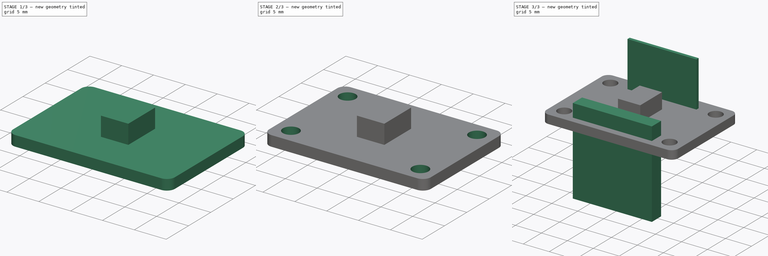
[diagram: build sequence overview — one tinted view per stage of 3, left to right]
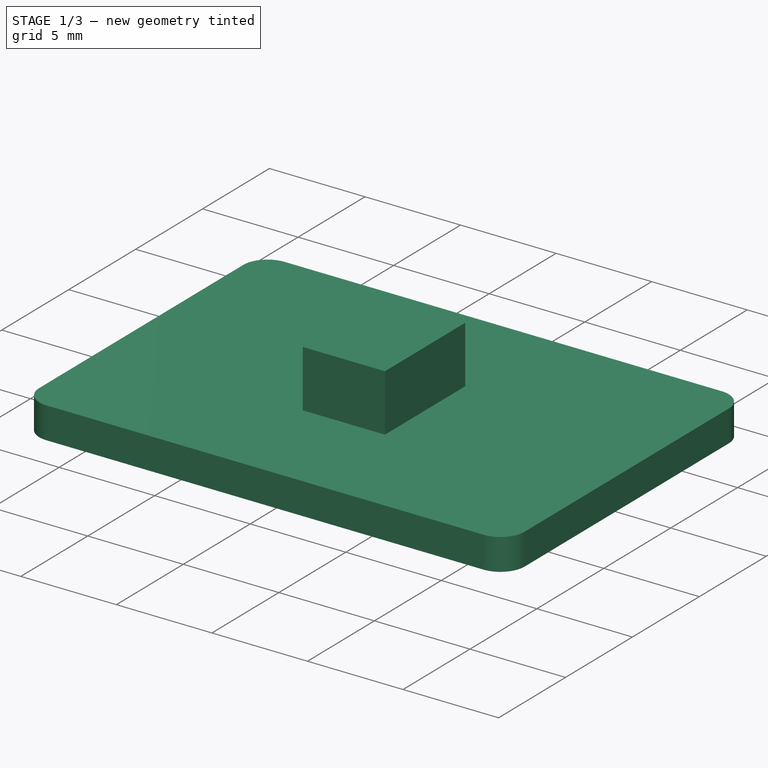
[diagram: stage 1 of 3 — iso view after this stage's code; geometry added in this stage tinted green]
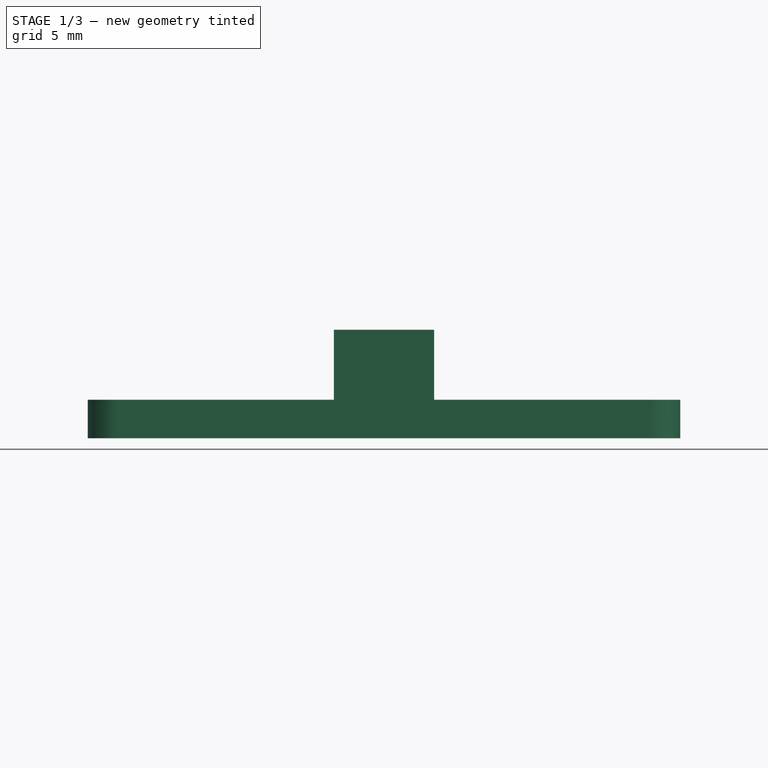
[diagram: stage 1 of 3 — front view after this stage's code; geometry added in this stage tinted green]
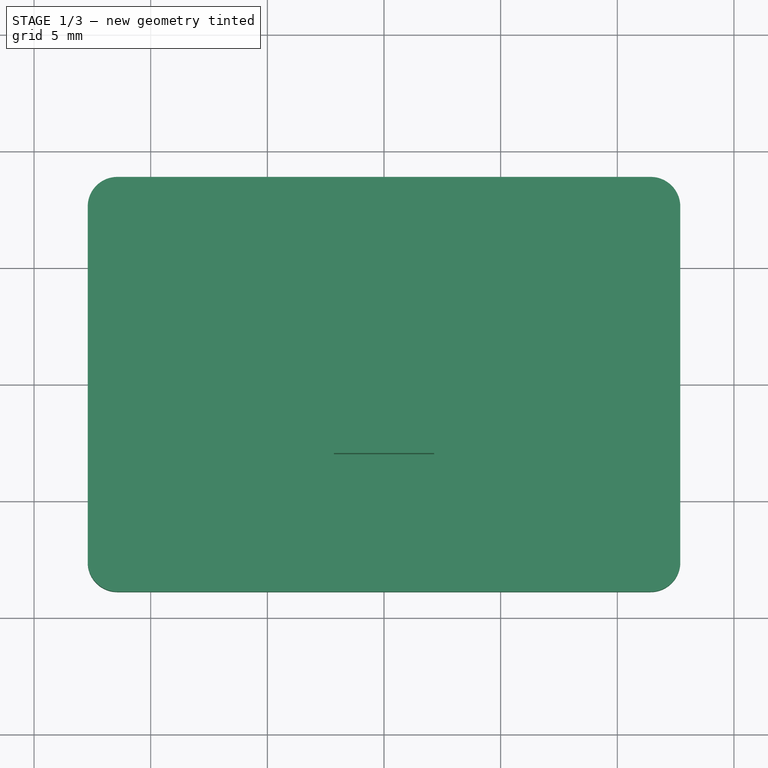
[diagram: stage 1 of 3 — top view after this stage's code; geometry added in this stage tinted green]
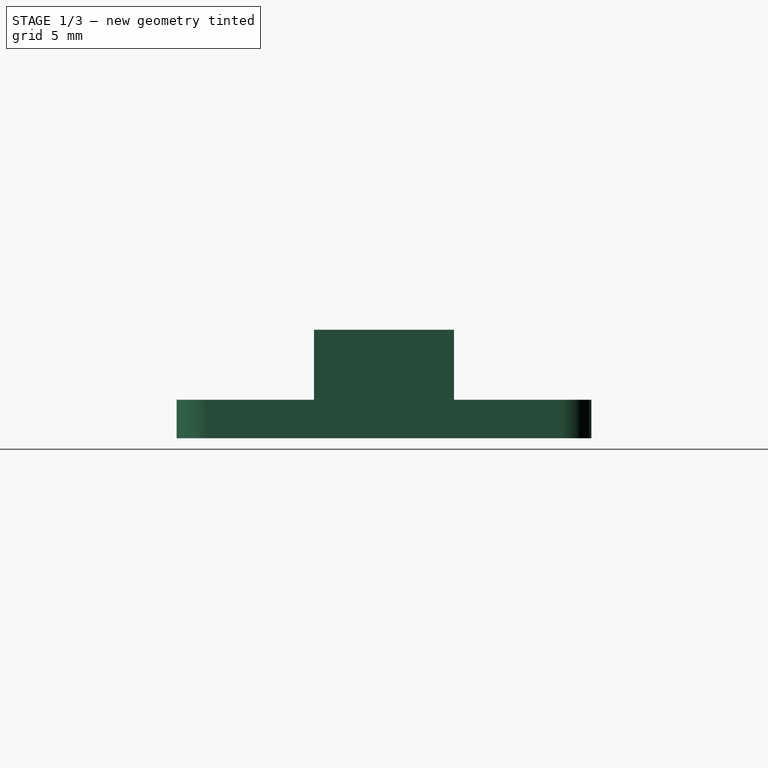
[diagram: stage 1 of 3 — right view after this stage's code; geometry added in this stage tinted green]
FCSTD DOCUMENT  (FreeCAD 0.19R24276 (Git))
Label: Adafruit_VL53LOX_LiDar
License: All rights reserved
LicenseURL: http://en.wikipedia.org/wiki/All_rights_reserved
objects: Sketcher::SketchObject×9, PartDesign::Body×8, PartDesign::Pad×7, Spreadsheet::Sheet×1, PartDesign::Pocket×1, App::Part×1
note: 33 computed .brp shape members not serialized (recipe doc carries the construction recipe); baked Part::Feature solids carry a one-line shape summary decoded from their .brp

FEATURE [PartDesign::Body] Body014  label="JumperHeader"
  Group = -> [Sketch018,Pad009]
  Origin = -> Origin018
  Placement = pos=(0,0,-4.2) rot=(0,0,1;0rad)
  Tip = -> Pad009
FEATURE [Sketcher::SketchObject] Sketch
  FullyConstrained = true
  MapMode = 5
  Support = -> [XY_Plane]
  expr: Constraints[15] = <<LiDaRParams>>.lidar_hole_diam / 2
  expr: Constraints[16] = <<LiDaRParams>>.lidar_leng
  expr: Constraints[17] = <<LiDaRParams>>.lidar_width
  sketch-geometry (8):
    g0: LineSegment StartX=-11.43 StartY=8.89 StartZ=0 EndX=11.43 EndY=8.89 EndZ=0
    g1: LineSegment StartX=12.7 StartY=7.62 StartZ=0 EndX=12.7 EndY=-7.62 EndZ=0
    g2: LineSegment StartX=11.43 StartY=-8.89 StartZ=0 EndX=-11.43 EndY=-8.89 EndZ=0
    g3: LineSegment StartX=-12.7 StartY=-7.62 StartZ=0 EndX=-12.7 EndY=7.62 EndZ=0
    g4: ArcOfCircle CenterX=-11.43 CenterY=7.62 CenterZ=0 NormalX=0 NormalY=0 NormalZ=1 AngleXU=0 Radius=1.27 StartAngle=1.5708 EndAngle=3.14159
    g5: ArcOfCircle CenterX=11.43 CenterY=7.62 CenterZ=0 NormalX=0 NormalY=0 NormalZ=1 AngleXU=0 Radius=1.27 StartAngle=-2.1307e-12 EndAngle=1.5708
    g6: ArcOfCircle CenterX=11.43 CenterY=-7.62 CenterZ=0 NormalX=0 NormalY=0 NormalZ=1 AngleXU=0 Radius=1.27 StartAngle=4.71239 EndAngle=6.28319
    g7: ArcOfCircle CenterX=-11.43 CenterY=-7.62 CenterZ=0 NormalX=0 NormalY=0 NormalZ=1 AngleXU=0 Radius=1.27 StartAngle=3.14159 EndAngle=4.71239
  constraints (19):
    c: Horizontal(g0)
    c: Horizontal(g2)
    c: Vertical(g1)
    c: Vertical(g3)
    c: Tangent(g3,g4) = 1.5708
    c: Tangent(g0,g4) = 1.5708
    c: Tangent(g0,g5) = 1.5708
    c: Tangent(g1,g5) = 1.5708
    c: Tangent(g1,g6) = 1.5708
    c: Tangent(g2,g6) = 1.5708
    c: Tangent(g2,g7) = 1.5708
    c: Tangent(g3,g7) = 1.5708
    c: Equal(g4,g5)
    c: Equal(g5,g6)
    c: Equal(g5,g7)
    c: Radius(g5) = 1.27
    c: DistanceX(g3,g1) = 25.4
    c: DistanceY(g2,g0) = 17.78
    c: Symmetric(g5,g7,g-1)
FEATURE [PartDesign::Pad] Pad
  Direction = (1,1,1)
  Length = 1.65
  Length2 = 100
  Profile = -> Sketch
  Reversed = true
  Type = 0
  expr: Length = <<LiDaRParams>>.board_thickness
FEATURE [PartDesign::Body] Body  label="Adafruit_VL53LOX"
  Group = -> [Sketch,Pad,Sketch020,Pocket]
  Origin = -> Origin001
  Tip = -> Pocket
FEATURE [Sketcher::SketchObject] Sketch021
  FullyConstrained = true
  MapMode = 5
  Support = -> [XY_Plane020]
  expr: Constraints[10] = <<LiDaRParams>>.qc_leng
  expr: Constraints[9] = <<LiDaRParams>>.qc_width
  sketch-geometry (4):
    g0: LineSegment StartX=-2.15 StartY=3 StartZ=0 EndX=2.15 EndY=3 EndZ=0
    g1: LineSegment StartX=2.15 StartY=3 StartZ=0 EndX=2.15 EndY=-3 EndZ=0
    g2: LineSegment StartX=2.15 StartY=-3 StartZ=0 EndX=-2.15 EndY=-3 EndZ=0
    g3: LineSegment StartX=-2.15 StartY=-3 StartZ=0 EndX=-2.15 EndY=3 EndZ=0
  constraints (11):
    c: Coincident(g0,g1)
    c: Coincident(g1,g2)
    c: Coincident(g2,g3)
    c: Coincident(g3,g0)
    c: Horizontal(g0)
    c: Horizontal(g2)
    c: Vertical(g1)
    c: Vertical(g3)
    c: Symmetric(g2,g0,g-1)
    c: DistanceY(g1,g1) = 6
    c: DistanceX(g0,g0) = 4.3
FEATURE [PartDesign::Pad] Pad011
  Direction = (1,1,1)
  Length = 3
  Length2 = 100
  Profile = -> Sketch021
  Type = 0
  expr: Length = <<LiDaRParams>>.qc_thick
FEATURE [PartDesign::Body] Body016  label="QwiicConnect"
  Group = -> [Sketch021,Pad011]
  Origin = -> Origin020
  Placement = pos=(-10,0,0) rot=(0,0,1;0rad)
  Tip = -> Pad011
FEATURE [Sketcher::SketchObject] Sketch022
  FullyConstrained = true
  MapMode = 5
  Support = -> [XY_Plane021]
  expr: Constraints[9] = <<LiDaRParams>>.qc_width
  expr: Constraints[10] = <<LiDaRParams>>.qc_leng
  sketch-geometry (4):
    g0: LineSegment StartX=-2.15 StartY=3 StartZ=0 EndX=2.15 EndY=3 EndZ=0
    g1: LineSegment StartX=2.15 StartY=3 StartZ=0 EndX=2.15 EndY=-3 EndZ=0
    g2: LineSegment StartX=2.15 StartY=-3 StartZ=0 EndX=-2.15 EndY=-3 EndZ=0
    g3: LineSegment StartX=-2.15 StartY=-3 StartZ=0 EndX=-2.15 EndY=3 EndZ=0
  constraints (11):
    c: Coincident(g0,g1)
    c: Coincident(g1,g2)
    c: Coincident(g2,g3)
    c: Coincident(g3,g0)
    c: Horizontal(g0)
    c: Horizontal(g2)
    c: Vertical(g1)
    c: Vertical(g3)
    c: Symmetric(g2,g0,g-1)
    c: DistanceY(g1,g1) = 6
    c: DistanceX(g0,g0) = 4.3
FEATURE [PartDesign::Pad] Pad012
  Direction = (1,1,1)
  Length = 3
  Length2 = 100
  Profile = -> Sketch022
  Type = 0
  expr: Length = <<LiDaRParams>>.qc_thick
FEATURE [PartDesign::Body] Body017  label="QwiicConnect001"
  Group = -> [Sketch022,Pad012]
  Origin = -> Origin021
  Placement = pos=(10,0,0) rot=(0,0,1;0rad)
  Tip = -> Pad012
FEATURE [Sketcher::SketchObject] Sketch023
  FullyConstrained = true
  MapMode = 5
  Placement = pos=(0,0,0) rot=(1,0,0;1.5708rad)
  Support = -> [XZ_Plane022]
  expr: Constraints[6] = <<LiDaRParams>>.laser_thick
  sketch-geometry (3):
    g0: LineSegment StartX=0 StartY=1.4 StartZ=0 EndX=22.1695 EndY=101.4 EndZ=0
    g1: LineSegment StartX=22.1695 StartY=101.4 StartZ=0 EndX=0 EndY=101.4 EndZ=0
    g2: LineSegment StartX=0 StartY=1.4 StartZ=0 EndX=0 EndY=101.4 EndZ=0
  constraints (9):
    c: PointOnObject(g0,g-2)
    c: Coincident(g1,g0)
    c: Horizontal(g1)
    c: Coincident(g2,g0)
    c: Vertical(g2)
    c: Coincident(g1,g2)
    c: DistanceY(g-1,g0) = 1.4
    c: Angle(g0,g2) = 0.218166
    c: DistanceY(g2,g2) = 100
FEATURE [PartDesign::Body] Body018  label="FOV"
  Group = -> [Sketch023]
  Origin = -> Origin022
FEATURE [App::Part] Part  label="Adafruit_LiDar"
  Group = -> [Body,Body013,Body012,Body014,Body015,Body016,Body017,Body018]
  Origin = -> Origin
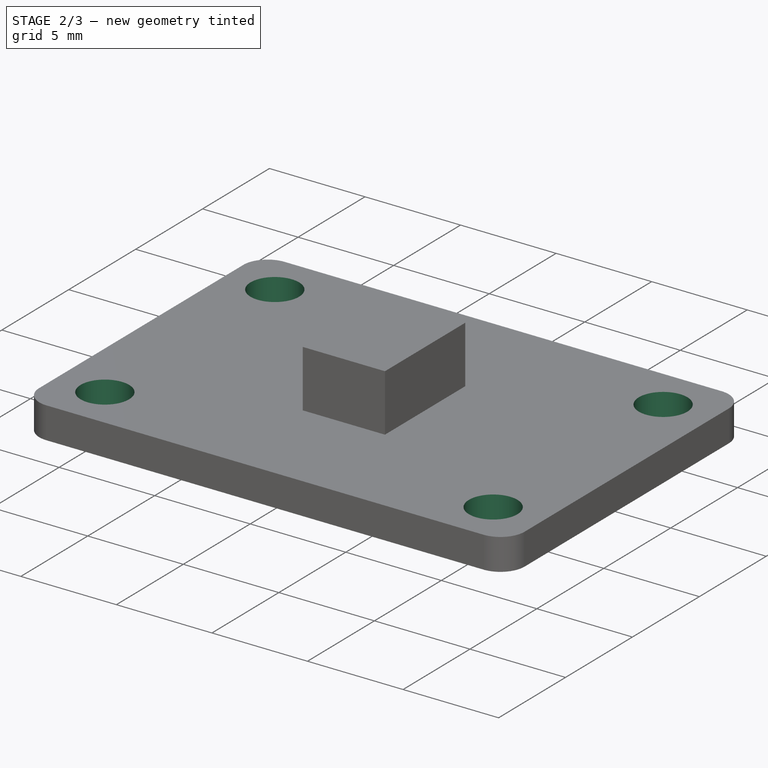
[diagram: stage 2 of 3 — iso view after this stage's code; geometry added in this stage tinted green]
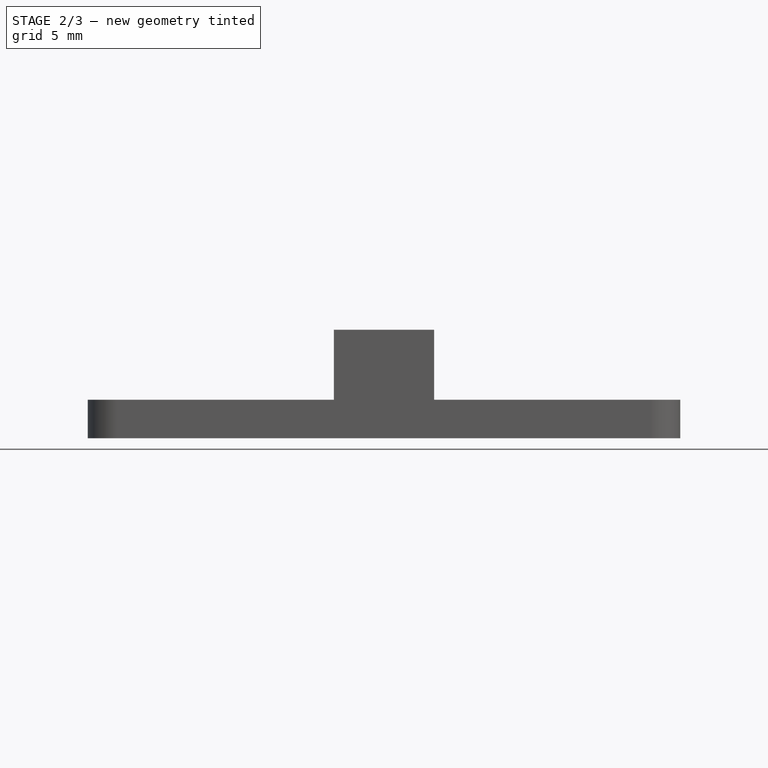
[diagram: stage 2 of 3 — front view after this stage's code; geometry added in this stage tinted green]
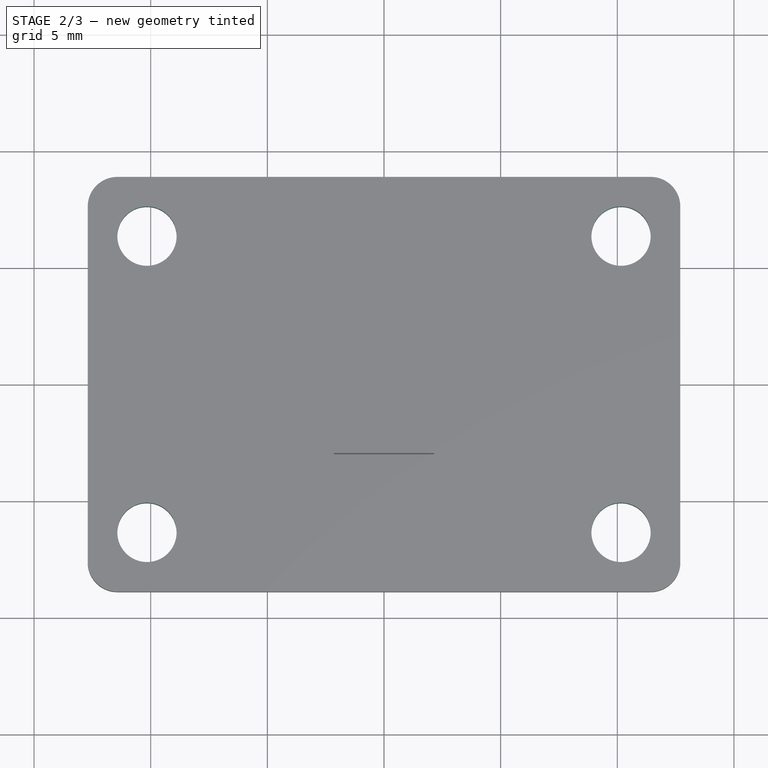
[diagram: stage 2 of 3 — top view after this stage's code; geometry added in this stage tinted green]
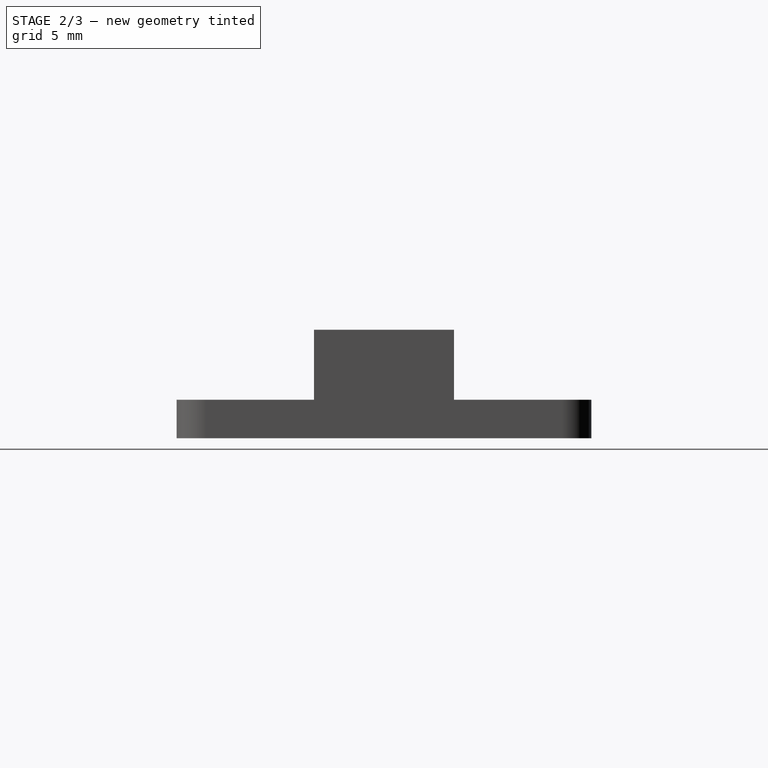
[diagram: stage 2 of 3 — right view after this stage's code; geometry added in this stage tinted green]
FEATURE [Sketcher::SketchObject] Sketch019
  FullyConstrained = true
  MapMode = 5
  Support = -> [XY_Plane019]
  expr: Constraints[9] = <<LiDaRParams>>.laser_leng
  expr: Constraints[10] = <<LiDaRParams>>.laser_width
  sketch-geometry (4):
    g0: LineSegment StartX=-1.2 StartY=2.2 StartZ=0 EndX=1.2 EndY=2.2 EndZ=0
    g1: LineSegment StartX=1.2 StartY=2.2 StartZ=0 EndX=1.2 EndY=-2.2 EndZ=0
    g2: LineSegment StartX=1.2 StartY=-2.2 StartZ=0 EndX=-1.2 EndY=-2.2 EndZ=0
    g3: LineSegment StartX=-1.2 StartY=-2.2 StartZ=0 EndX=-1.2 EndY=2.2 EndZ=0
  constraints (11):
    c: Coincident(g0,g1)
    c: Coincident(g1,g2)
    c: Coincident(g2,g3)
    c: Coincident(g3,g0)
    c: Horizontal(g0)
    c: Horizontal(g2)
    c: Vertical(g1)
    c: Vertical(g3)
    c: Symmetric(g2,g0,g-1)
    c: DistanceY(g1,g1) = 4.4
    c: DistanceX(g0,g0) = 2.4
FEATURE [PartDesign::Pad] Pad010
  Direction = (1,1,1)
  Length = 1.4
  Length2 = 100
  Profile = -> Sketch019
  Type = 0
  expr: Length = <<LiDaRParams>>.laser_thick
FEATURE [PartDesign::Body] Body015  label="Laser"
  Group = -> [Sketch019,Pad010]
  Origin = -> Origin019
  Tip = -> Pad010
FEATURE [Sketcher::SketchObject] Sketch020
  FullyConstrained = true
  MapMode = 5
  Support = -> [XY_Plane001]
  expr: Constraints[16] = <<LiDaRParams>>.lidar_hole_diam
  expr: Constraints[17] = <<LiDaRParams>>.lidar_holespace_leng
  expr: Constraints[18] = <<LiDaRParams>>.lidar_holespace_width
  sketch-geometry (8):
    g0: LineSegment StartX=-10.16 StartY=6.35 StartZ=0 EndX=10.16 EndY=6.35 EndZ=0
    g1: LineSegment StartX=10.16 StartY=6.35 StartZ=0 EndX=10.16 EndY=-6.35 EndZ=0
    g2: LineSegment StartX=10.16 StartY=-6.35 StartZ=0 EndX=-10.16 EndY=-6.35 EndZ=0
    g3: LineSegment StartX=-10.16 StartY=-6.35 StartZ=0 EndX=-10.16 EndY=6.35 EndZ=0
    g4: Circle CenterX=-10.16 CenterY=6.35 CenterZ=0 NormalX=0 NormalY=0 NormalZ=1 AngleXU=0 Radius=1.27
    g5: Circle CenterX=10.16 CenterY=6.35 CenterZ=0 NormalX=0 NormalY=0 NormalZ=1 AngleXU=0 Radius=1.27
    g6: Circle CenterX=10.16 CenterY=-6.35 CenterZ=0 NormalX=0 NormalY=0 NormalZ=1 AngleXU=0 Radius=1.27
    g7: Circle CenterX=-10.16 CenterY=-6.35 CenterZ=0 NormalX=0 NormalY=0 NormalZ=1 AngleXU=0 Radius=1.27
  constraints (19):
    c: Coincident(g0,g1)
    c: Coincident(g1,g2)
    c: Coincident(g2,g3)
    c: Coincident(g3,g0)
    c: Horizontal(g0)
    c: Horizontal(g2)
    c: Vertical(g1)
    c: Vertical(g3)
    c: Symmetric(g2,g0,g-1)
    c: Coincident(g4,g0)
    c: Coincident(g5,g0)
    c: Coincident(g6,g1)
    c: Coincident(g7,g2)
    c: Equal(g4,g5)
    c: Equal(g5,g6)
    c: Equal(g7,g5)
    c: Diameter(g5) = 2.54
    c: DistanceX(g0,g0) = 20.32
    c: DistanceY(g1,g1) = 12.7
FEATURE [PartDesign::Pocket] Pocket
  BaseFeature = -> Pad
  Length = 5
  Length2 = 100
  Profile = -> Sketch020
  Type = 1
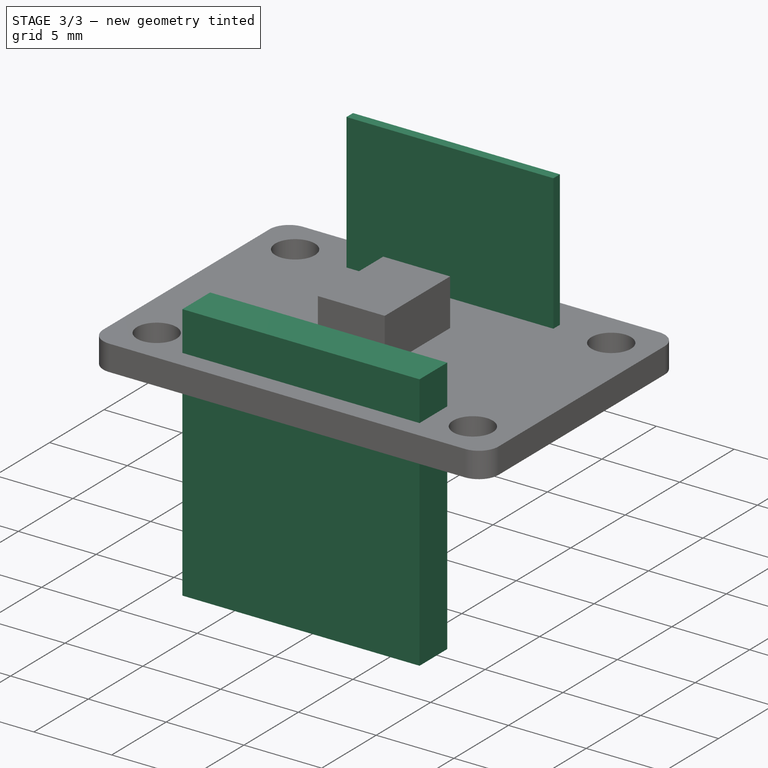
[diagram: stage 3 of 3 — iso view after this stage's code; geometry added in this stage tinted green]
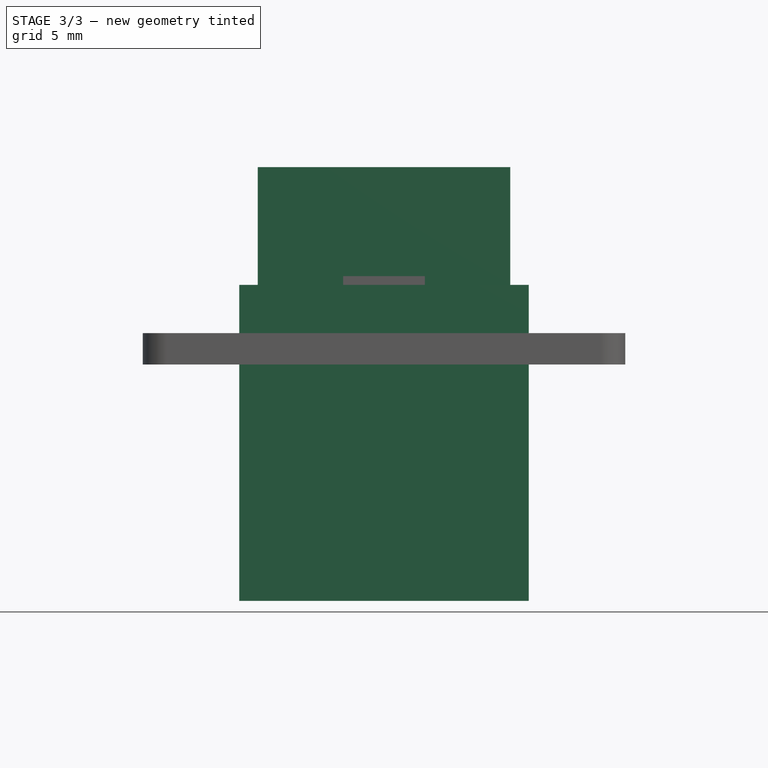
[diagram: stage 3 of 3 — front view after this stage's code; geometry added in this stage tinted green]
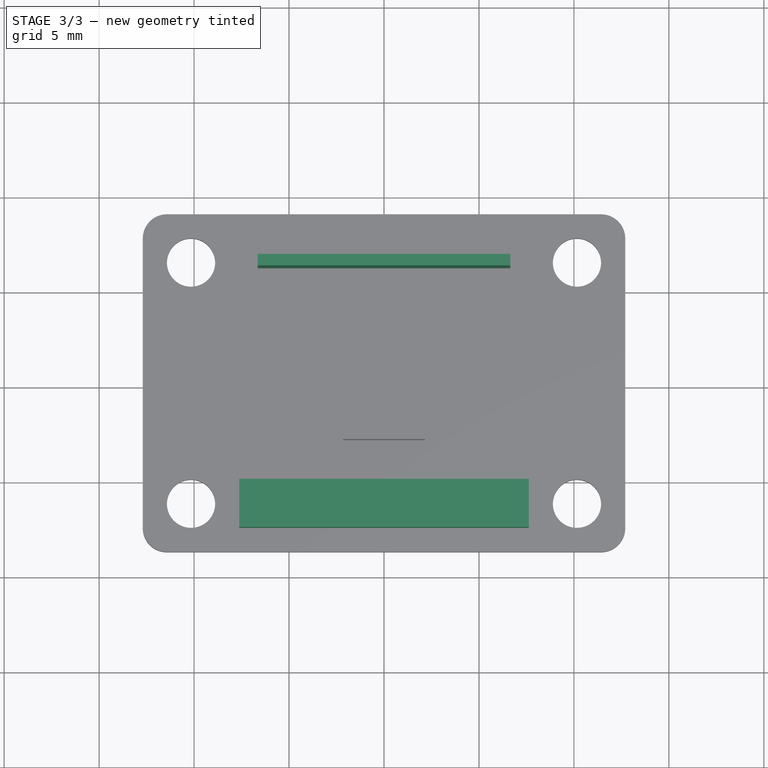
[diagram: stage 3 of 3 — top view after this stage's code; geometry added in this stage tinted green]
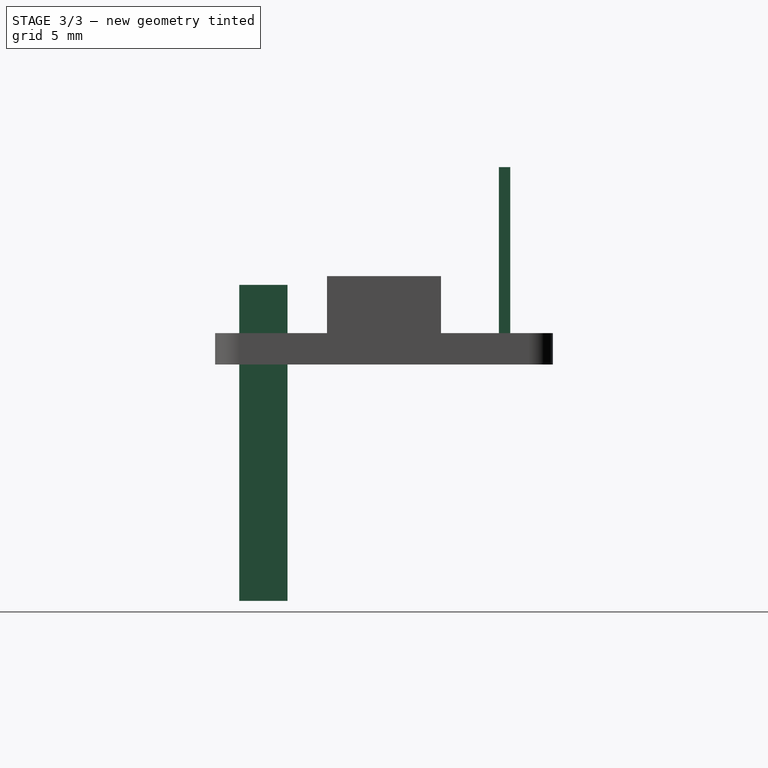
[diagram: stage 3 of 3 — right view after this stage's code; geometry added in this stage tinted green]
FEATURE [Spreadsheet::Sheet] Spreadsheet  label="LiDaRParams"
  cells = A1=Inch to mm; B1(intomm)==25.4mm; E1=std tol; F1(std_tol)==0.3mm; A3=General Parameters; C3=LiDar Params; D3=Inch; E3=mm; A4=Board Thick; B4(board_thickness)==1.65mm; C4=Board Length; D4=1; E4(lidar_leng)==D4 * $B$1; C5=Board Width; D5=0.7; E5(lidar_width)==D5 * $B$1; A6=Pin Hole Diam; B6(pin_hole_diam)==0.8mm; C6=Hole Space Leng; D6=0.8; E6(lidar_holespace_leng)==D6 * $B$1; A7=Pin Hole Space; B7(pin_hole_space)==2.54mm; C7=Hole Space Width; D7=0.5; E7(lidar_holespace_width)==D7 * $B$1; A8=Pin Width; B8(pin_width)==0.6mm; C8=Num Pins; E8(lidar_num_pins)=6; A9=Pin Square Block Dim; B9(pin_square_block_dim)==2.54mm; C9=Hole  Diam; E9(lidar_hole_diam)==2.54mm; A10=Pin Leng; B10(pin_leng)==6.2mm; C10=Laser Leng; E10(laser_leng)==4.4mm; A11=Pin Jumper Leng; B11(pin_jumper_leng)==14.1mm; C11=Laser Width; E11(laser_width)==2.4mm; A12=Pin Spacing; B12(pin_spacing)==2.54mm; C12=Laser Thick; E12(laser_thick)==1.4mm; A14=Qwiic Leng; B14(qc_leng)==4.3mm; A15=Qwiic Width; B15(qc_width)==6mm; A16=Qwiic Thick; B16(qc_thick)==3mm
FEATURE [Sketcher::SketchObject] Sketch014
  FullyConstrained = true
  MapMode = 5
  Support = -> [XY_Plane016]
  expr: Constraints[10] = <<LiDaRParams>>.pin_square_block_dim * <<LiDaRParams>>.lidar_num_pins
  expr: Constraints[11] = <<LiDaRParams>>.lidar_holespace_width / 2
  expr: Constraints[12] = <<LiDaRParams>>.pin_square_block_dim
  sketch-geometry (5):
    g0: LineSegment StartX=-7.62 StartY=-5.08 StartZ=0 EndX=7.62 EndY=-5.08 EndZ=0
    g1: LineSegment StartX=7.62 StartY=-5.08 StartZ=0 EndX=7.62 EndY=-7.62 EndZ=0
    g2: LineSegment StartX=7.62 StartY=-7.62 StartZ=0 EndX=-7.62 EndY=-7.62 EndZ=0
    g3: LineSegment StartX=-7.62 StartY=-7.62 StartZ=0 EndX=-7.62 EndY=-5.08 EndZ=0
    g4: GeomPoint X=0 Y=-6.35 Z=0
  constraints (13):
    c: Coincident(g0,g1)
    c: Coincident(g1,g2)
    c: Coincident(g2,g3)
    c: Coincident(g3,g0)
    c: Horizontal(g0)
    c: Horizontal(g2)
    c: Vertical(g1)
    c: Vertical(g3)
    c: PointOnObject(g4,g-2)
    c: Symmetric(g2,g0,g4)
    c: DistanceX(g2,g2) = 15.24
    c: DistanceY(g4,g-1) = 6.35
    c: DistanceY(g1,g0) = 2.54
FEATURE [Sketcher::SketchObject] Sketch018
  FullyConstrained = true
  MapMode = 5
  Support = -> [XY_Plane018]
  expr: Constraints[11] = <<LiDaRParams>>.lidar_holespace_width / 2
  expr: Constraints[10] = <<LiDaRParams>>.pin_square_block_dim * <<LiDaRParams>>.lidar_num_pins
  expr: Constraints[12] = <<LiDaRParams>>.pin_square_block_dim
  sketch-geometry (5):
    g0: LineSegment StartX=-7.62 StartY=-5.08 StartZ=0 EndX=7.62 EndY=-5.08 EndZ=0
    g1: LineSegment StartX=7.62 StartY=-5.08 StartZ=0 EndX=7.62 EndY=-7.62 EndZ=0
    g2: LineSegment StartX=7.62 StartY=-7.62 StartZ=0 EndX=-7.62 EndY=-7.62 EndZ=0
    g3: LineSegment StartX=-7.62 StartY=-7.62 StartZ=0 EndX=-7.62 EndY=-5.08 EndZ=0
    g4: GeomPoint X=0 Y=-6.35 Z=0
  constraints (13):
    c: Coincident(g0,g1)
    c: Coincident(g1,g2)
    c: Coincident(g2,g3)
    c: Coincident(g3,g0)
    c: Horizontal(g0)
    c: Horizontal(g2)
    c: Vertical(g1)
    c: Vertical(g3)
    c: PointOnObject(g4,g-2)
    c: Symmetric(g2,g0,g4)
    c: DistanceX(g2,g2) = 15.24
    c: DistanceY(g4,g-1) = 6.35
    c: DistanceY(g1,g0) = 2.54
FEATURE [Sketcher::SketchObject] Sketch016
  FullyConstrained = true
  MapMode = 5
  Support = -> [XY_Plane017]
  expr: Constraints[11] = <<LiDaRParams>>.pin_square_block_dim * (<<LiDaRParams>>.lidar_num_pins - 1) + <<LiDaRParams>>.pin_width
  expr: Constraints[10] = <<LiDaRParams>>.pin_width
  expr: Constraints[12] = <<LiDaRParams>>.lidar_holespace_width / 2
  sketch-geometry (5):
    g0: LineSegment StartX=-6.65 StartY=6.65 StartZ=0 EndX=6.65 EndY=6.65 EndZ=0
    g1: LineSegment StartX=6.65 StartY=6.65 StartZ=0 EndX=6.65 EndY=6.05 EndZ=0
    g2: LineSegment StartX=6.65 StartY=6.05 StartZ=0 EndX=-6.65 EndY=6.05 EndZ=0
    g3: LineSegment StartX=-6.65 StartY=6.05 StartZ=0 EndX=-6.65 EndY=6.65 EndZ=0
    g4: GeomPoint X=0 Y=6.35 Z=0
  constraints (13):
    c: Coincident(g0,g1)
    c: Coincident(g1,g2)
    c: Coincident(g2,g3)
    c: Coincident(g3,g0)
    c: Horizontal(g0)
    c: Horizontal(g2)
    c: Vertical(g1)
    c: Vertical(g3)
    c: PointOnObject(g4,g-2)
    c: Symmetric(g2,g0,g4)
    c: DistanceY(g1,g1) = 0.6
    c: DistanceX(g2,g2) = 13.3
    c: DistanceY(g-1,g4) = 6.35
FEATURE [PartDesign::Pad] Pad007
  Direction = (1,1,1)
  Length = 2.54
  Length2 = 100
  Profile = -> Sketch014
  Type = 0
  expr: Length = <<LiDaRParams>>.pin_square_block_dim
FEATURE [PartDesign::Body] Body012  label="PinBlock"
  Group = -> [Sketch014,Pad007]
  Origin = -> Origin016
  Placement = pos=(0,0,-4.2) rot=(0,0,1;0rad)
  Tip = -> Pad007
FEATURE [PartDesign::Pad] Pad008
  Direction = (1,1,1)
  Length = 8.74
  Length2 = 100
  Profile = -> Sketch016
  Type = 0
  expr: Length = <<LiDaRParams>>.pin_square_block_dim + <<LiDaRParams>>.pin_leng
FEATURE [PartDesign::Body] Body013  label="Pins"
  Group = -> [Sketch016,Pad008]
  Origin = -> Origin017
  Placement = pos=(0,0,-1.7) rot=(1,0,0;3.14159rad)
  Tip = -> Pad008
FEATURE [PartDesign::Pad] Pad009
  Direction = (1,1,1)
  Length = 14.1
  Length2 = 100
  Profile = -> Sketch018
  Reversed = true
  Type = 0
  expr: Length = <<LiDaRParams>>.pin_jumper_leng
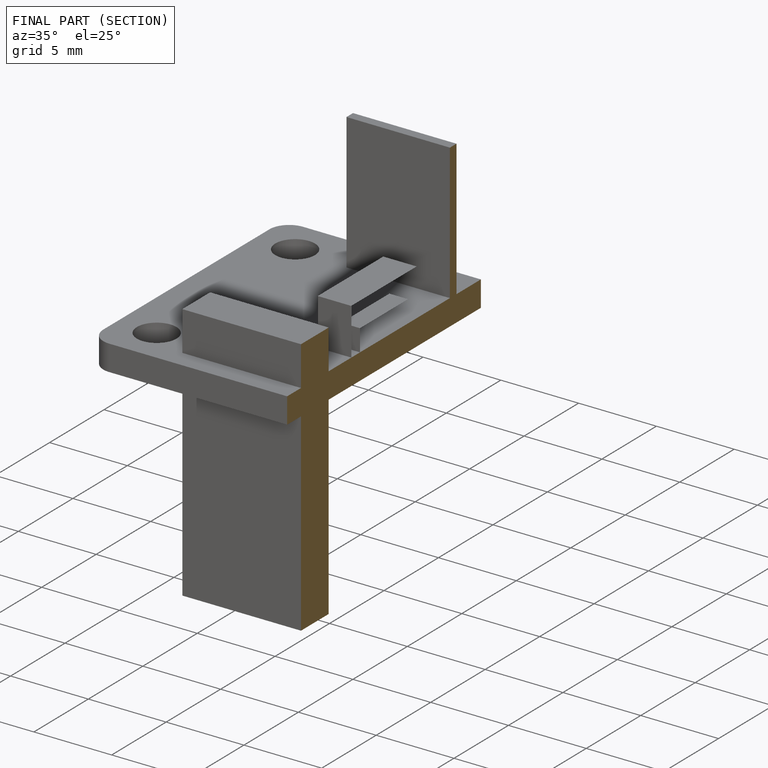
[diagram: finished part — half-section view (interior)]
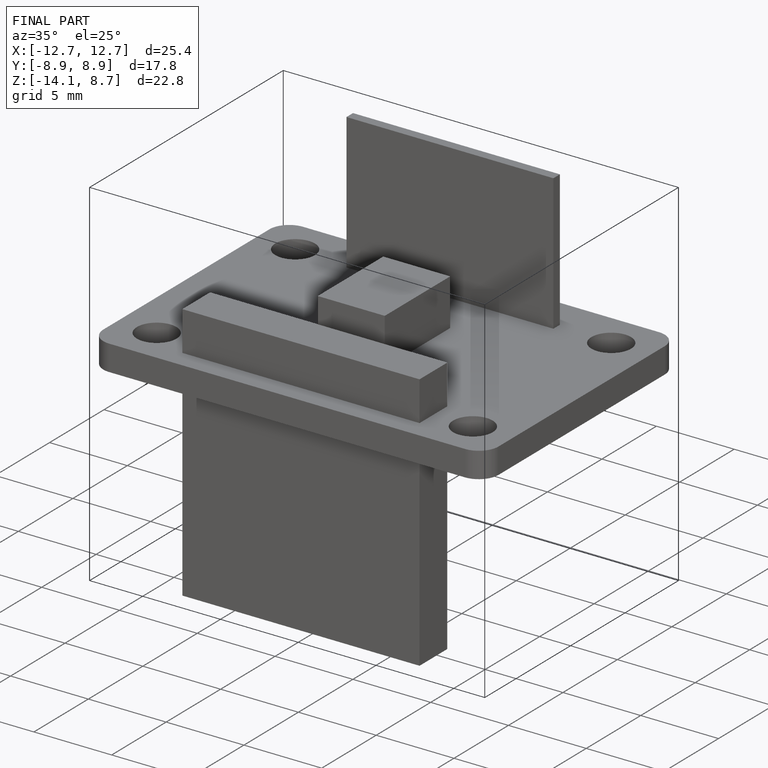
[diagram: finished part — iso view with bounding-box wireframe]
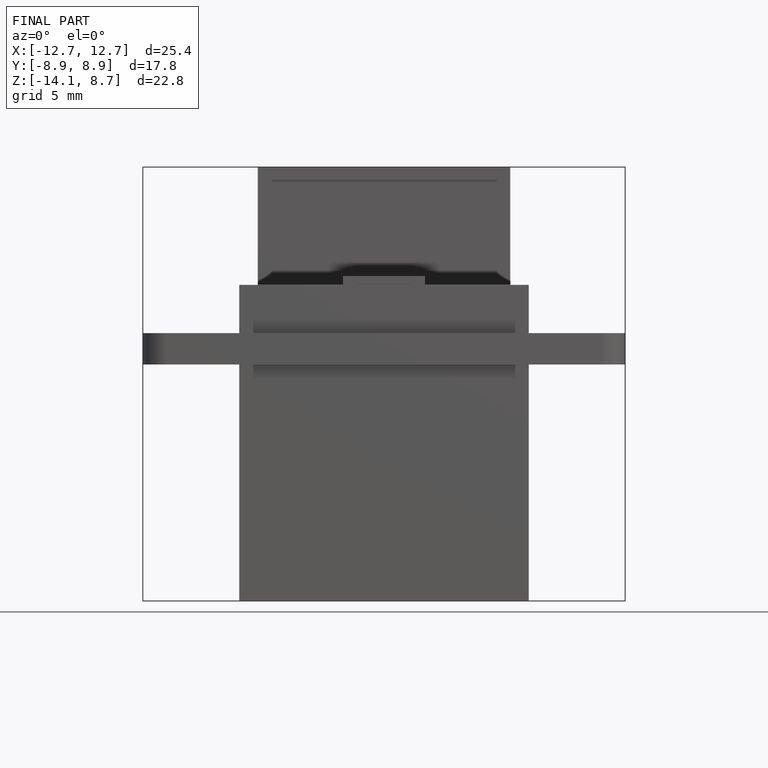
[diagram: finished part — front view with bounding-box wireframe]
